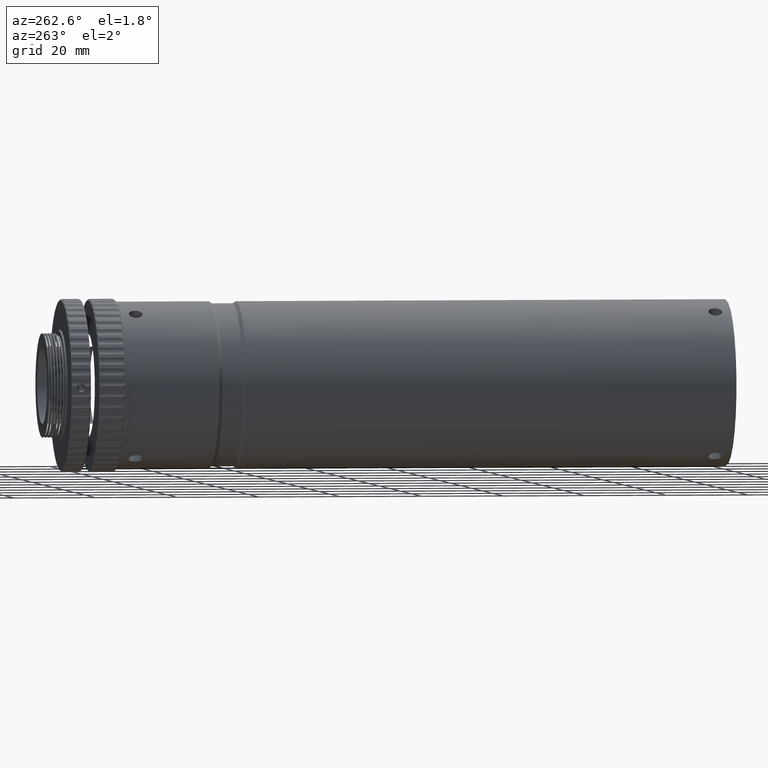
[diagram: clean part render]
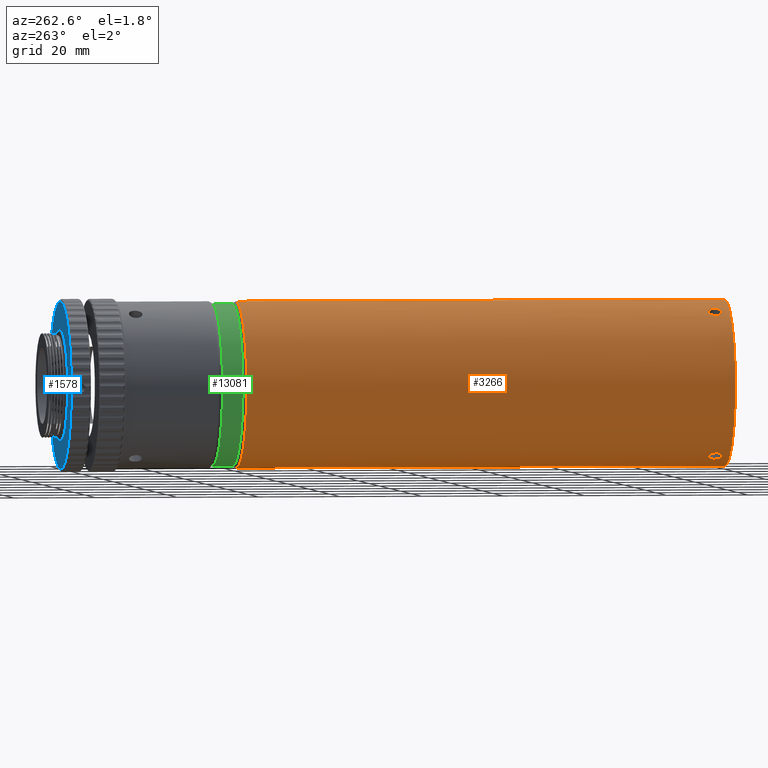
[diagram: same view with three faces highlighted in distinct colors, each labeled with its STEP entity id]
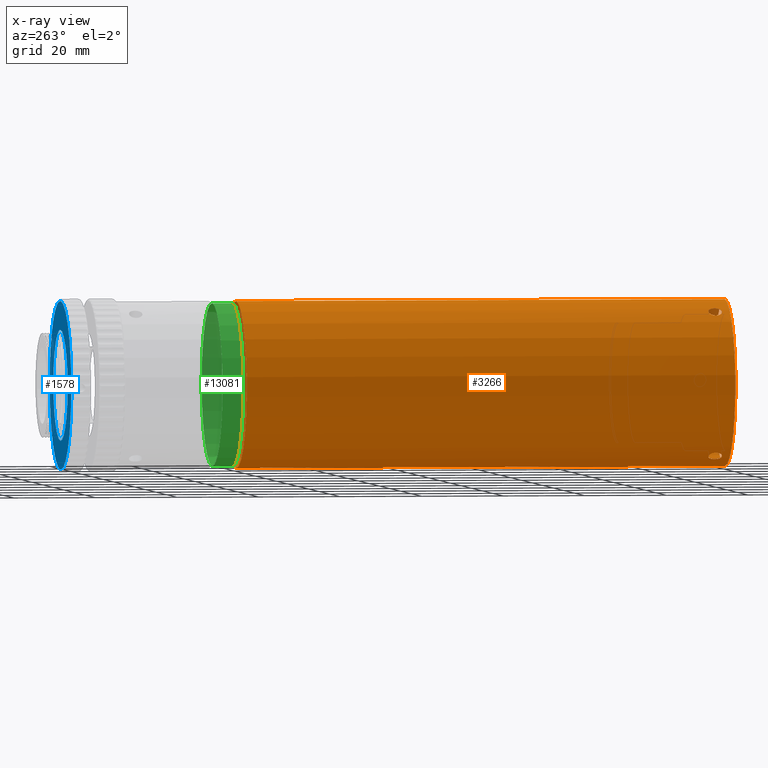
[diagram: x-ray of the same camera — body ghosted, the three highlighted faces saturated]
A machine part, auxiliary view with three faces highlighted in distinct colors.
The next image is the same camera in x-ray (body ghosted, the three faces saturated) — at least one of them is partly hidden behind the body in this view.
Their STEP definitions:

[orange] entity #3266 — the highlighted cylindrical surface (bore or boss wall) has radius 20.3 mm, axis along (-0, -1, -0).
#26 = CARTESIAN_POINT ( 'NONE',  ( -63.02940459154697800, -27.33804775748190600, 0.5335180865193155400 ) ) ;
#76 = CARTESIAN_POINT ( 'NONE',  ( -63.07369030847461000, -26.60465242210379300, -1.441164191080271700 ) ) ;
#78 = CARTESIAN_POINT ( 'NONE',  ( -93.28503863896725100, -24.13360773574394400, -17.68761650392867000 ) ) ;
#127 = CARTESIAN_POINT ( 'NONE',  ( -92.01997506380510600, -25.55526361403991600, -18.34248564448934000 ) ) ;
#147 = CARTESIAN_POINT ( 'NONE',  ( -93.28539647651750500, -24.12306458828154000, 17.68840874845557200 ) ) ;
#170 = CARTESIAN_POINT ( 'NONE',  ( -93.37689705623066100, -27.42284060940046000, -17.63558176197440000 ) ) ;
#185 = CARTESIAN_POINT ( 'NONE',  ( -94.79829572471213300, -25.24094102411731900, 16.74517867155957900 ) ) ;
#209 = CARTESIAN_POINT ( 'NONE',  ( -94.86799614728059300, -25.77294781569454300, -16.69714670067587300 ) ) ;
#232 = CARTESIAN_POINT ( 'NONE',  ( -93.84172553826734000, -27.36992428063801300, 17.36231336007065800 ) ) ;
#291 = CARTESIAN_POINT ( 'NONE',  ( -92.04995873384417800, -26.20774559697580100, 18.32841281745070100 ) ) ;
#297 = CYLINDRICAL_SURFACE ( 'NONE', #6867, 20.30000000000009300 ) ;
#622 = FACE_OUTER_BOUND ( 'NONE', #4177, .T. ) ;
#844 = B_SPLINE_CURVE_WITH_KNOTS ( 'NONE', 3,
 ( #6378, #11621, #7423, #1103, #8476, #2131, #9565, #3226, #10612, #4286, #11671, #5362, #12720, #6429, #78, #7457, #1147, #8529, #2177, #9604, #3278, #10656, #4332, #11716, #5411, #12761, #6463, #127, #7498, #1188, #8576, #2230, #9648, #3315, #10714, #4378, #11757, #5453, #12814, #6507, #170, #7548, #1235, #8615, #2276, #9698, #3364, #10754, #4425, #11800, #5495, #12863, #6564, #209 ),
 .UNSPECIFIED., .T., .F.,
 ( 4, 2, 2, 2, 2, 2, 2, 2, 2, 2, 2, 2, 2, 2, 2, 2, 2, 2, 2, 2, 2, 2, 2, 2, 2, 2, 4 ),
 ( 0.0000000000000000000, 0.0003225113595350485300, 0.0006450227190700970600, 0.0009675340786051455400, 0.001290045438140194100, 0.001935068157210304500, 0.002580090876280414700, 0.002902602235815454600, 0.003225113595350495000, 0.003547624954885534400, 0.003870136314420574400, 0.004192647673955614300, 0.004515159033490654200, 0.004837670393025695000, 0.005160181752560734000, 0.005805204471630824200, 0.006450227190700915300, 0.006772738550235957900, 0.007095249909771000400, 0.007417761269306042900, 0.007740272628841085400, 0.008062783988376129700, 0.008385295347911171300, 0.008707806707446214700, 0.009030318066981256300, 0.009675340786051348300, 0.01032036350512143700 ),
 .UNSPECIFIED. ) ;
#863 = VERTEX_POINT ( 'NONE', #11095 ) ;
#890 = DIRECTION ( 'NONE',  ( 0.0000000000000000000, 0.0000000000000000000, -1.000000000000000000 ) ) ;
#963 = FACE_OUTER_BOUND ( 'NONE', #4030, .T. ) ;
#1007 = CARTESIAN_POINT ( 'NONE',  ( -63.02263340040161000, -24.12288979189519700, 0.1067617393898315900 ) ) ;
#1056 = CARTESIAN_POINT ( 'NONE',  ( -63.08553108693578100, -25.34378745357397700, 1.596855867073586200 ) ) ;
#1102 = CARTESIAN_POINT ( 'NONE',  ( -63.02353157339918300, -27.41205347139481300, 0.2177129863972864000 ) ) ;
#1103 = CARTESIAN_POINT ( 'NONE',  ( -94.82452360732634100, -25.34573176781282600, -16.72713581755575500 ) ) ;
#1146 = CARTESIAN_POINT ( 'NONE',  ( -63.08980588779061800, -25.99105808369082000, -1.650000000000001200 ) ) ;
#1147 = CARTESIAN_POINT ( 'NONE',  ( -93.00974405441718300, -24.20686708451473000, -17.83984221179725800 ) ) ;
#1188 = CARTESIAN_POINT ( 'NONE',  ( -92.01004155119929400, -25.98774796598395300, -18.34718020762403500 ) ) ;
#1211 = CARTESIAN_POINT ( 'NONE',  ( -93.65936308024717500, -24.13360773574394700, 17.47150018699145200 ) ) ;
#1235 = CARTESIAN_POINT ( 'NONE',  ( -93.65826303733938100, -27.41243076603201300, -17.47214883433208500 ) ) ;
#1260 = CARTESIAN_POINT ( 'NONE',  ( -94.85902817970827500, -25.55526361403993000, 16.70335756377899400 ) ) ;
#1304 = CARTESIAN_POINT ( 'NONE',  ( -93.56837046320370600, -27.42284060940045600, 17.52503453891588200 ) ) ;
#1339 = CARTESIAN_POINT ( 'NONE',  ( -92.01011231479222400, -25.77294781569454300, 18.34714670067573300 ) ) ;
#1637 = AXIS2_PLACEMENT_3D ( 'NONE', #5420, #12772, #6472 ) ;
#1675 = B_SPLINE_CURVE_WITH_KNOTS ( 'NONE', 3,
 ( #7473, #4304, #8556, #2203, #9623, #3293, #10686, #4348, #11734, #5429, #12783, #6482, #147, #7522, #1211, #8594, #2251, #9670, #3339, #10731, #4405, #11775, #5472, #12837, #6532, #185, #7569, #1260, #8635, #2291, #9725, #3383, #10772, #4446, #11827, #5517, #12882, #6587, #232, #7608, #1304, #8679, #2336, #9764, #3440, #10818, #4493, #11876, #5576, #12921, #6626, #291, #7661, #1339 ),
 .UNSPECIFIED., .T., .F.,
 ( 4, 2, 2, 2, 2, 2, 2, 2, 2, 2, 2, 2, 2, 2, 2, 2, 2, 2, 2, 2, 2, 2, 2, 2, 2, 2, 4 ),
 ( 0.0000000000000000000, 0.0003225113595350507000, 0.0006450227190701014000, 0.0009675340786051520500, 0.001290045438140202800, 0.001935068157210307600, 0.002580090876280412100, 0.002902602235815449000, 0.003225113595350486300, 0.003547624954885522700, 0.003870136314420560000, 0.004192647673955596900, 0.004515159033490634200, 0.004837670393025670700, 0.005160181752560708000, 0.005805204471630791300, 0.006450227190700876300, 0.006772738550235919700, 0.007095249909770963100, 0.007417761269306007300, 0.007740272628841051600, 0.008062783988376095000, 0.008385295347911138300, 0.008707806707446181700, 0.009030318066981226800, 0.009675340786051318800, 0.01032036350512141100 ),
 .UNSPECIFIED. ) ;
#1957 = DIRECTION ( 'NONE',  ( -0.0000000000000000000, -1.000000000000000000, -0.0000000000000000000 ) ) ;
#2008 = CARTESIAN_POINT ( 'NONE',  ( -63.08892477153111900, -25.55666895931976900, -1.639294594933091500 ) ) ;
#2049 = CARTESIAN_POINT ( 'NONE',  ( -63.02686964982925800, -24.17571331189969200, 0.4277664082956068000 ) ) ;
#2098 = CARTESIAN_POINT ( 'NONE',  ( -63.08980269254384200, -25.66464982831788400, 1.649960818850447100 ) ) ;
#2130 = CARTESIAN_POINT ( 'NONE',  ( -63.02262953080190000, -27.42305344733821200, -0.1073234534783601100 ) ) ;
#2131 = CARTESIAN_POINT ( 'NONE',  ( -94.72967033268987800, -25.04112624779828200, -16.79200229660441600 ) ) ;
#2141 = EDGE_CURVE ( 'NONE', #10464, #10464, #8572, .T. ) ;
#2150 = DIRECTION ( 'NONE',  ( 0.0000000000000000000, 0.0000000000000000000, -1.000000000000000000 ) ) ;
#2153 = VERTEX_POINT ( 'NONE', #10268 ) ;
#2177 = CARTESIAN_POINT ( 'NONE',  ( -92.74807555628169100, -24.34114323833769300, -17.97940862652313900 ) ) ;
#2203 = CARTESIAN_POINT ( 'NONE',  ( -92.05781992182436100, -25.34573176781283300, 18.32449293514826700 ) ) ;
#2230 = CARTESIAN_POINT ( 'NONE',  ( -92.19772099613256000, -26.60214500290915000, -18.25731879083505800 ) ) ;
#2251 = CARTESIAN_POINT ( 'NONE',  ( -93.92884170264551400, -24.20686708451472700, 17.30920093718111000 ) ) ;
#2276 = CARTESIAN_POINT ( 'NONE',  ( -93.92872655587747500, -27.33908175081395000, -17.30927206842407200 ) ) ;
#2291 = CARTESIAN_POINT ( 'NONE',  ( -94.86806054694540100, -25.98774796598394200, 16.69710217108091000 ) ) ;
#2336 = CARTESIAN_POINT ( 'NONE',  ( -93.28615040549628600, -27.41243076603202400, 17.68698816249561600 ) ) ;
#2855 = B_SPLINE_CURVE_WITH_KNOTS ( 'NONE', 3,
 ( #8337, #7277, #2008, #9412, #3087, #10477, #4150, #11533, #5228, #12584, #6292, #13655, #7328, #1007, #8393, #2049, #9460, #3131, #10530, #4189, #11573, #5277, #12637, #6329, #13702, #7378, #1056, #8429, #2098, #9513, #3178, #10567, #4246, #11619, #5316, #12682, #6376, #26, #7422, #1102, #8474, #2130, #9564, #3224, #10610, #4285, #11670, #5360, #12719, #6428, #76, #7456, #1146, #8528 ),
 .UNSPECIFIED., .T., .F.,
 ( 4, 2, 2, 2, 2, 2, 2, 2, 2, 2, 2, 2, 2, 2, 2, 2, 2, 2, 2, 2, 2, 2, 2, 2, 2, 2, 4 ),
 ( 0.0000000000000000000, 0.0003225113595350486900, 0.0006450227190700973900, 0.0009675340786051459800, 0.001290045438140194800, 0.001935068157210285700, 0.002580090876280377000, 0.002902602235815422500, 0.003225113595350468500, 0.003547624954885514500, 0.003870136314420560000, 0.004192647673955606500, 0.004515159033490653300, 0.004837670393025699300, 0.005160181752560746200, 0.005805204471630837300, 0.006450227190700931000, 0.006772738550235971700, 0.007095249909771013400, 0.007417761269306055900, 0.007740272628841096700, 0.008062783988376138300, 0.008385295347911178200, 0.008707806707446219900, 0.009030318066981259800, 0.009675340786051341400, 0.01032036350512142300 ),
 .UNSPECIFIED. ) ;
#3075 = CARTESIAN_POINT ( 'NONE',  ( -83.32263811662116400, -29.41294781569395400, -20.30000000000000100 ) ) ;
#3087 = CARTESIAN_POINT ( 'NONE',  ( -63.08305854043575100, -25.24092216112050100, -1.565612878988773300 ) ) ;
#3131 = CARTESIAN_POINT ( 'NONE',  ( -63.03553830561107700, -24.28950042233086700, 0.7304607107992388000 ) ) ;
#3178 = CARTESIAN_POINT ( 'NONE',  ( -63.08616925707590200, -26.20490172239757600, 1.606895654680239300 ) ) ;
#3224 = CARTESIAN_POINT ( 'NONE',  ( -63.02682983739637000, -27.37068577844037500, -0.4257859600478377500 ) ) ;
#3226 = CARTESIAN_POINT ( 'NONE',  ( -94.58798688815463200, -24.76704769127029200, -16.88743668097596300 ) ) ;
#3266 = ADVANCED_FACE ( 'NONE', ( #9048, #11862, #6269, #963, #622 ), #297, .T. ) ;
#3278 = CARTESIAN_POINT ( 'NONE',  ( -92.51487251720084300, -24.52870316310619700, -18.09969014795123600 ) ) ;
#3293 = CARTESIAN_POINT ( 'NONE',  ( -92.16142257785276100, -25.04112624779827500, 18.27478082920524100 ) ) ;
#3315 = CARTESIAN_POINT ( 'NONE',  ( -92.51243219753476400, -27.01467880698773900, -18.10092477548052500 ) ) ;
#3339 = CARTESIAN_POINT ( 'NONE',  ( -94.18054401238090600, -24.34114323833769000, 17.15237257778864300 ) ) ;
#3364 = CARTESIAN_POINT ( 'NONE',  ( -94.17910219575543400, -27.20575713576215500, -17.15328672822055400 ) ) ;
#3383 = CARTESIAN_POINT ( 'NONE',  ( -94.69639855471953600, -26.60214500290914000, 16.81470662976680300 ) ) ;
#3440 = CARTESIAN_POINT ( 'NONE',  ( -93.00986322926459600, -27.33908175081396400, 17.83977805739252900 ) ) ;
#4028 = EDGE_CURVE ( 'NONE', #6340, #6340, #844, .T. ) ;
#4030 = EDGE_LOOP ( 'NONE', ( #12214 ) ) ;
#4150 = CARTESIAN_POINT ( 'NONE',  ( -63.07312692463489200, -24.94637269738179000, -1.432095347344639600 ) ) ;
#4177 = EDGE_LOOP ( 'NONE', ( #12446 ) ) ;
#4189 = CARTESIAN_POINT ( 'NONE',  ( -63.04737311125797600, -24.46053838152318600, 1.005800403034427200 ) ) ;
#4216 = EDGE_LOOP ( 'NONE', ( #8342 ) ) ;
#4246 = CARTESIAN_POINT ( 'NONE',  ( -63.06501642179476600, -26.78628126441348200, 1.319823919349158100 ) ) ;
#4285 = CARTESIAN_POINT ( 'NONE',  ( -63.03554011517724100, -27.25637152697866800, -0.7305246059265820800 ) ) ;
#4286 = CARTESIAN_POINT ( 'NONE',  ( -94.33877875810748000, -24.45397071521937700, -17.05162387963104100 ) ) ;
#4304 = CARTESIAN_POINT ( 'NONE',  ( -92.01011231479221000, -25.66389268169640700, 18.34714670067573600 ) ) ;
#4332 = CARTESIAN_POINT ( 'NONE',  ( -92.31564256971682900, -24.76602630171584400, -18.19943567190565000 ) ) ;
#4348 = CARTESIAN_POINT ( 'NONE',  ( -92.31491290138070800, -24.76704769127028200, 18.19979655912782900 ) ) ;
#4378 = CARTESIAN_POINT ( 'NONE',  ( -92.74739568012418500, -27.20433618074929100, -17.97976631697644800 ) ) ;
#4405 = CARTESIAN_POINT ( 'NONE',  ( -94.40131238508396900, -24.52870316310620100, 17.01055358241891800 ) ) ;
#4425 = CARTESIAN_POINT ( 'NONE',  ( -94.40173318063406800, -27.01663907020688500, -17.01027549981332900 ) ) ;
#4446 = CARTESIAN_POINT ( 'NONE',  ( -94.40360176372158200, -27.01467880698774900, 17.00905751735938400 ) ) ;
#4493 = CARTESIAN_POINT ( 'NONE',  ( -92.74958814209139700, -27.20575713576214500, 17.97861705191385100 ) ) ;
#4834 = AXIS2_PLACEMENT_3D ( 'NONE', #13542, #1957, #890 ) ;
#5228 = CARTESIAN_POINT ( 'NONE',  ( -63.06056730713294200, -24.68217709342710000, -1.242696424168446400 ) ) ;
#5277 = CARTESIAN_POINT ( 'NONE',  ( -63.06059706046438200, -24.68266608686806100, 1.243241314331655400 ) ) ;
#5316 = CARTESIAN_POINT ( 'NONE',  ( -63.04743575948118200, -27.08440131083641600, 1.007085557891311200 ) ) ;
#5360 = CARTESIAN_POINT ( 'NONE',  ( -63.04731623389557900, -27.08623843735142600, -1.004679269194186800 ) ) ;
#5362 = CARTESIAN_POINT ( 'NONE',  ( -93.84613940853809300, -24.16644364246143100, -17.36045418174845200 ) ) ;
#5411 = CARTESIAN_POINT ( 'NONE',  ( -92.16144006722757400, -25.04108191278858800, -18.27477240237338300 ) ) ;
#5420 = CARTESIAN_POINT ( 'NONE',  ( -83.32263811662116400, 90.41623458750542900, 0.0000000000000000000 ) ) ;
#5429 = CARTESIAN_POINT ( 'NONE',  ( -92.58170725141576400, -24.45397071521937700, 18.06606958700494300 ) ) ;
#5453 = CARTESIAN_POINT ( 'NONE',  ( -93.00721466285388300, -27.33804775748190600, -17.84121480090404100 ) ) ;
#5472 = CARTESIAN_POINT ( 'NONE',  ( -94.58730951648424000, -24.76602630171583300, 16.88788814868035000 ) ) ;
#5495 = CARTESIAN_POINT ( 'NONE',  ( -94.69519682119427300, -26.60465242210380100, -16.81552110622013200 ) ) ;
#5517 = CARTESIAN_POINT ( 'NONE',  ( -94.18119371947891200, -27.20433618074930800, 17.15196263299141700 ) ) ;
#5576 = CARTESIAN_POINT ( 'NONE',  ( -92.51442129282503400, -27.01663907020687800, 18.09991552628465800 ) ) ;
#6269 = FACE_BOUND ( 'NONE', #4216, .T. ) ;
#6292 = CARTESIAN_POINT ( 'NONE',  ( -63.03865854158238600, -24.33105213173987000, -0.8304344868651648600 ) ) ;
#6329 = CARTESIAN_POINT ( 'NONE',  ( -63.07305485766050200, -24.94464706515827100, 1.431071524296487300 ) ) ;
#6340 = VERTEX_POINT ( 'NONE', #7368 ) ;
#6376 = CARTESIAN_POINT ( 'NONE',  ( -63.03563426486110900, -27.25508687999131000, 0.7331051565168335000 ) ) ;
#6378 = CARTESIAN_POINT ( 'NONE',  ( -94.86799614728059300, -25.77294781569454300, -16.69714670067587300 ) ) ;
#6428 = CARTESIAN_POINT ( 'NONE',  ( -63.06490342300226400, -26.78851078492914400, -1.318129413554044200 ) ) ;
#6429 = CARTESIAN_POINT ( 'NONE',  ( -93.38018209626697800, -24.12288979189520400, -17.63370065088506100 ) ) ;
#6463 = CARTESIAN_POINT ( 'NONE',  ( -92.05827388439571700, -25.34378745357398800, -18.32427672034903700 ) ) ;
#6472 = DIRECTION ( 'NONE',  ( 0.0000000000000000000, 0.0000000000000000000, -1.000000000000000000 ) ) ;
#6482 = CARTESIAN_POINT ( 'NONE',  ( -93.09548181329260800, -24.16644364246143400, 17.79384654643265400 ) ) ;
#6497 = EDGE_LOOP ( 'NONE', ( #7664 ) ) ;
#6507 = CARTESIAN_POINT ( 'NONE',  ( -93.28364641127814100, -27.41205347139481300, -17.68839843375587900 ) ) ;
#6532 = CARTESIAN_POINT ( 'NONE',  ( -94.72965429015202700, -25.04108191278859500, 16.79201322943133300 ) ) ;
#6564 = CARTESIAN_POINT ( 'NONE',  ( -94.86799614728062100, -25.99105808369081300, -16.69714670067587300 ) ) ;
#6587 = CARTESIAN_POINT ( 'NONE',  ( -93.93129509546257300, -27.33804775748191000, 17.30769671438459100 ) ) ;
#6626 = CARTESIAN_POINT ( 'NONE',  ( -92.19902722019459400, -26.60465242210380400, 18.25668529730025800 ) ) ;
#6654 = VERTEX_POINT ( 'NONE', #10172 ) ;
#6867 = AXIS2_PLACEMENT_3D ( 'NONE', #8124, #11416, #2150 ) ;
#7041 = EDGE_LOOP ( 'NONE', ( #10179 ) ) ;
#7277 = CARTESIAN_POINT ( 'NONE',  ( -63.08980588779063200, -25.66389268169640700, -1.649999999999999000 ) ) ;
#7328 = CARTESIAN_POINT ( 'NONE',  ( -63.02264760798757900, -24.12306458828153300, -0.2162025427918980200 ) ) ;
#7368 = CARTESIAN_POINT ( 'NONE',  ( -94.86799614728060700, -25.77294781569454000, -16.69714670067587600 ) ) ;
#7378 = CARTESIAN_POINT ( 'NONE',  ( -63.08305919209572500, -25.24094102411734000, 1.565621677959095900 ) ) ;
#7422 = CARTESIAN_POINT ( 'NONE',  ( -63.02688996751093200, -27.36992428063800600, 0.4286402517395097000 ) ) ;
#7423 = CARTESIAN_POINT ( 'NONE',  ( -94.85916555266466300, -25.55666895931977900, -16.70326247227375300 ) ) ;
#7456 = CARTESIAN_POINT ( 'NONE',  ( -63.08610669704904700, -26.20774559697578400, -1.606125047238640100 ) ) ;
#7457 = CARTESIAN_POINT ( 'NONE',  ( -93.10006577354735700, -24.17571331189970300, -17.79053428571684500 ) ) ;
#7473 = CARTESIAN_POINT ( 'NONE',  ( -92.01011231479222400, -25.77294781569454300, 18.34714670067573300 ) ) ;
#7498 = CARTESIAN_POINT ( 'NONE',  ( -92.01014784428616600, -25.66464982831788400, -18.34712987726598100 ) ) ;
#7522 = CARTESIAN_POINT ( 'NONE',  ( -93.56509885319478300, -24.12288979189519000, 17.52693891149506600 ) ) ;
#7548 = CARTESIAN_POINT ( 'NONE',  ( -93.56558724666476200, -27.42305344733820100, -17.52666140562261500 ) ) ;
#7569 = CARTESIAN_POINT ( 'NONE',  ( -94.82410937853190100, -25.34378745357398400, 16.72742085327533000 ) ) ;
#7603 = EDGE_CURVE ( 'NONE', #863, #863, #13386, .T. ) ;
#7608 = CARTESIAN_POINT ( 'NONE',  ( -93.66073636518602500, -27.41205347139480300, 17.47068544735844100 ) ) ;
#7661 = CARTESIAN_POINT ( 'NONE',  ( -92.01011231479225200, -25.99105808369081700, 18.34714670067572900 ) ) ;
#7664 = ORIENTED_EDGE ( 'NONE', *, *, #12860, .F. ) ;
#8124 = CARTESIAN_POINT ( 'NONE',  ( -83.32263811662116400, -36.46557285159197900, 0.0000000000000000000 ) ) ;
#8337 = CARTESIAN_POINT ( 'NONE',  ( -63.08980588779061800, -25.77294781569454300, -1.649999999999999900 ) ) ;
#8342 = ORIENTED_EDGE ( 'NONE', *, *, #11067, .F. ) ;
#8393 = CARTESIAN_POINT ( 'NONE',  ( -63.02351263064899500, -24.13360773574394000, 0.2161163169370733400 ) ) ;
#8429 = CARTESIAN_POINT ( 'NONE',  ( -63.08891110635005400, -25.55526361403991900, 1.639128080710223300 ) ) ;
#8474 = CARTESIAN_POINT ( 'NONE',  ( -63.02264683042906100, -27.42284060940046000, 0.1105472230583766100 ) ) ;
#8476 = CARTESIAN_POINT ( 'NONE',  ( -94.79828843041012500, -25.24092216112052600, -16.74518363539896600 ) ) ;
#8528 = CARTESIAN_POINT ( 'NONE',  ( -63.08980588779061800, -25.77294781569454300, -1.649999999999999900 ) ) ;
#8529 = CARTESIAN_POINT ( 'NONE',  ( -92.83359049010742600, -24.28950042233086400, -17.93437416084490700 ) ) ;
#8556 = CARTESIAN_POINT ( 'NONE',  ( -92.01982402566768800, -25.55666895931977600, 18.34255706720669500 ) ) ;
#8572 = CIRCLE ( 'NONE', #4834, 20.30000000000000100 ) ;
#8576 = CARTESIAN_POINT ( 'NONE',  ( -92.04926008820969200, -26.20490172239757200, -18.32874394259910400 ) ) ;
#8594 = CARTESIAN_POINT ( 'NONE',  ( -93.84097892648685500, -24.17571331189970600, 17.36276787742109600 ) ) ;
#8615 = CARTESIAN_POINT ( 'NONE',  ( -93.83928371420954300, -27.37068577844037200, -17.36379258012339500 ) ) ;
#8635 = CARTESIAN_POINT ( 'NONE',  ( -94.86796381303335600, -25.66464982831787400, 16.69716905841539400 ) ) ;
#8679 = CARTESIAN_POINT ( 'NONE',  ( -93.37969757239673600, -27.42305344733819100, 17.63398485910083800 ) ) ;
#9048 = FACE_BOUND ( 'NONE', #7041, .T. ) ;
#9412 = CARTESIAN_POINT ( 'NONE',  ( -63.08557082071269700, -25.34573176781282900, -1.597357117592669500 ) ) ;
#9460 = CARTESIAN_POINT ( 'NONE',  ( -63.02932859280072400, -24.20686708451472700, 0.5306412746160189500 ) ) ;
#9513 = CARTESIAN_POINT ( 'NONE',  ( -63.08981225171859800, -25.98774796598394600, 1.650078036542980600 ) ) ;
#9564 = CARTESIAN_POINT ( 'NONE',  ( -63.02350090702778100, -27.41243076603202400, -0.2148393281636741300 ) ) ;
#9565 = CARTESIAN_POINT ( 'NONE',  ( -94.68762466405608800, -24.94637269738179000, -16.82054343280520900 ) ) ;
#9604 = CARTESIAN_POINT ( 'NONE',  ( -92.58922191913818300, -24.46053838152319700, -18.06179476462346800 ) ) ;
#9623 = CARTESIAN_POINT ( 'NONE',  ( -92.08656737901760900, -25.24092216112049800, 18.31079651438758300 ) ) ;
#9648 = CARTESIAN_POINT ( 'NONE',  ( -92.30844792135546600, -26.78628126441346100, -18.20352696764913600 ) ) ;
#9670 = CARTESIAN_POINT ( 'NONE',  ( -94.09878555414481100, -24.28950042233086000, 17.20391345004553000 ) ) ;
#9698 = CARTESIAN_POINT ( 'NONE',  ( -94.09883998416498200, -27.25637152697867900, -17.20387993535173600 ) ) ;
#9725 = CARTESIAN_POINT ( 'NONE',  ( -94.83248500457779100, -26.20490172239757200, 16.72184828791873200 ) ) ;
#9764 = CARTESIAN_POINT ( 'NONE',  ( -93.10180079825748600, -27.37068577844038600, 17.78957854017107800 ) ) ;
#10172 = CARTESIAN_POINT ( 'NONE',  ( -63.08980588779061800, -25.77294781569454000, -1.649999999999999000 ) ) ;
#10179 = ORIENTED_EDGE ( 'NONE', *, *, #4028, .F. ) ;
#10268 = CARTESIAN_POINT ( 'NONE',  ( -92.01011231479219500, -25.77294781569454000, 18.34714670067572900 ) ) ;
#10464 = VERTEX_POINT ( 'NONE', #3075 ) ;
#10477 = CARTESIAN_POINT ( 'NONE',  ( -63.07682143932076700, -25.04112624779826700, -1.482778532600973900 ) ) ;
#10530 = CARTESIAN_POINT ( 'NONE',  ( -63.03929478120073800, -24.34114323833769300, 0.8270360487343684200 ) ) ;
#10567 = CARTESIAN_POINT ( 'NONE',  ( -63.07379479901130300, -26.60214500290914300, 1.442612161068121500 ) ) ;
#10610 = CARTESIAN_POINT ( 'NONE',  ( -63.02932456472133500, -27.33908175081396100, -0.5305059889686020200 ) ) ;
#10612 = CARTESIAN_POINT ( 'NONE',  ( -94.52988019388710900, -24.68217709342709300, -16.92611984221181100 ) ) ;
#10656 = CARTESIAN_POINT ( 'NONE',  ( -92.37698008345383000, -24.68266608686805700, -18.16906294432096300 ) ) ;
#10686 = CARTESIAN_POINT ( 'NONE',  ( -92.20716276117242700, -24.94637269738177900, 18.25263878014969500 ) ) ;
#10714 = CARTESIAN_POINT ( 'NONE',  ( -92.58807761827272000, -27.08440131083641900, -18.06238308709910400 ) ) ;
#10731 = CARTESIAN_POINT ( 'NONE',  ( -94.33131931946726900, -24.46053838152319000, 17.05599436158890800 ) ) ;
#10754 = CARTESIAN_POINT ( 'NONE',  ( -94.33037682776155500, -27.08623843735143000, -17.05660418574992200 ) ) ;
#10772 = CARTESIAN_POINT ( 'NONE',  ( -94.59445000671321700, -26.78628126441348600, 16.88370304829982500 ) ) ;
#10818 = CARTESIAN_POINT ( 'NONE',  ( -92.83353425052114000, -27.25637152697867900, 17.93440454127818000 ) ) ;
#11067 = EDGE_CURVE ( 'NONE', #6654, #6654, #2855, .T. ) ;
#11095 = CARTESIAN_POINT ( 'NONE',  ( -83.32263811662116400, 90.41623458750542900, -20.30000000000018200 ) ) ;
#11416 = DIRECTION ( 'NONE',  ( -0.0000000000000000000, -1.000000000000000000, -0.0000000000000000000 ) ) ;
#11533 = CARTESIAN_POINT ( 'NONE',  ( -63.06501456032810900, -24.76704769127028900, -1.312359878152014000 ) ) ;
#11573 = CARTESIAN_POINT ( 'NONE',  ( -63.05172944757861600, -24.52870316310619700, 1.089136565532192100 ) ) ;
#11619 = CARTESIAN_POINT ( 'NONE',  ( -63.05188038860708100, -27.01467880698774900, 1.091867258121001600 ) ) ;
#11621 = CARTESIAN_POINT ( 'NONE',  ( -94.86799614728059300, -25.66389268169641000, -16.69714670067587600 ) ) ;
#11670 = CARTESIAN_POINT ( 'NONE',  ( -63.03922401201658900, -27.20575713576217000, -0.8253303236934251800 ) ) ;
#11671 = CARTESIAN_POINT ( 'NONE',  ( -94.18380526594432900, -24.33105213173987400, -17.15122435839573400 ) ) ;
#11716 = CARTESIAN_POINT ( 'NONE',  ( -92.20808545142801900, -24.94464706515827900, -18.25218928045633100 ) ) ;
#11734 = CARTESIAN_POINT ( 'NONE',  ( -92.37746684884339700, -24.68217709342708200, 18.16881626638009500 ) ) ;
#11757 = CARTESIAN_POINT ( 'NONE',  ( -92.83125235331209500, -27.25508687999129300, -17.93561328055546900 ) ) ;
#11775 = CARTESIAN_POINT ( 'NONE',  ( -94.53033720594518700, -24.68266608686804600, 16.92582162998915500 ) ) ;
#11800 = CARTESIAN_POINT ( 'NONE',  ( -94.59303902104373700, -26.78851078492915100, -16.88464816102241500 ) ) ;
#11827 = CARTESIAN_POINT ( 'NONE',  ( -94.33240097210956800, -27.08440131083640900, 17.05529752920766400 ) ) ;
#11862 = FACE_BOUND ( 'NONE', #6497, .T. ) ;
#11876 = CARTESIAN_POINT ( 'NONE',  ( -92.59022128820626600, -27.08623843735143000, 18.06128345494395800 ) ) ;
#12214 = ORIENTED_EDGE ( 'NONE', *, *, #7603, .T. ) ;
#12446 = ORIENTED_EDGE ( 'NONE', *, *, #2141, .F. ) ;
#12584 = CARTESIAN_POINT ( 'NONE',  ( -63.04742834034016100, -24.45397071521937700, -1.014445707374052000 ) ) ;
#12637 = CARTESIAN_POINT ( 'NONE',  ( -63.06496226366234500, -24.76602630171584700, 1.311547523225159400 ) ) ;
#12682 = CARTESIAN_POINT ( 'NONE',  ( -63.03932495026023700, -27.20433618074929800, 0.8278036839848910100 ) ) ;
#12719 = CARTESIAN_POINT ( 'NONE',  ( -63.05175987640435400, -27.01663907020687500, -1.089640026471478100 ) ) ;
#12720 = CARTESIAN_POINT ( 'NONE',  ( -93.65987026535832200, -24.12306458828152200, -17.47220620566379900 ) ) ;
#12761 = CARTESIAN_POINT ( 'NONE',  ( -92.08655943305554100, -25.24094102411734400, -18.31080034951882100 ) ) ;
#12772 = DIRECTION ( 'NONE',  ( -0.0000000000000000000, -1.000000000000000000, -0.0000000000000000000 ) ) ;
#12783 = CARTESIAN_POINT ( 'NONE',  ( -92.74545054233674100, -24.33105213173987700, 17.98165884526075700 ) ) ;
#12814 = CARTESIAN_POINT ( 'NONE',  ( -93.09929884408514100, -27.36992428063802100, -17.79095361181031300 ) ) ;
#12837 = CARTESIAN_POINT ( 'NONE',  ( -94.68677404077486400, -24.94464706515828200, 16.82111775615969800 ) ) ;
#12860 = EDGE_CURVE ( 'NONE', #2153, #2153, #1675, .T. ) ;
#12863 = CARTESIAN_POINT ( 'NONE',  ( -94.83184891897018100, -26.20774559697578700, -16.72228777021219400 ) ) ;
#12882 = CARTESIAN_POINT ( 'NONE',  ( -94.10102773169026600, -27.25508687999130700, 17.20250812403849500 ) ) ;
#12921 = CARTESIAN_POINT ( 'NONE',  ( -92.30997190581740600, -26.78851078492914800, 18.20277757457630900 ) ) ;
#13386 = CIRCLE ( 'NONE', #1637, 20.30000000000018200 ) ;
#13542 = CARTESIAN_POINT ( 'NONE',  ( -83.32263811662116400, -29.41294781569395400, 0.0000000000000000000 ) ) ;
#13655 = CARTESIAN_POINT ( 'NONE',  ( -63.02629312803277600, -24.16644364246142000, -0.4333923646843521600 ) ) ;
#13702 = CARTESIAN_POINT ( 'NONE',  ( -63.07681999248382000, -25.04108191278860600, 1.482759172941915200 ) ) ;

[blue] entity #1578 — the highlighted planar face has unit normal (0, -1, 0).
#1578 = ADVANCED_FACE ( 'NONE', ( #7618, #7302 ), #5947, .F. ) ;
#2650 = CARTESIAN_POINT ( 'NONE',  ( -83.32263811662117800, 133.4670521842360000, 0.0000000000000000000 ) ) ;
#2831 = CARTESIAN_POINT ( 'NONE',  ( -83.32263811662117800, 133.4670521842360000, 0.0000000000000000000 ) ) ;
#3739 = DIRECTION ( 'NONE',  ( 0.0000000000000000000, 0.0000000000000000000, 1.000000000000000000 ) ) ;
#3921 = DIRECTION ( 'NONE',  ( 0.0000000000000000000, 0.0000000000000000000, 1.000000000000000000 ) ) ;
#4199 = EDGE_LOOP ( 'NONE', ( #7317 ) ) ;
#5881 = CARTESIAN_POINT ( 'NONE',  ( -83.32263811662117800, 133.4670521842360000, 13.50000000019379700 ) ) ;
#5947 = PLANE ( 'NONE',  #11710 ) ;
#6237 = EDGE_LOOP ( 'NONE', ( #9931 ) ) ;
#7302 = FACE_OUTER_BOUND ( 'NONE', #6237, .T. ) ;
#7317 = ORIENTED_EDGE ( 'NONE', *, *, #9261, .F. ) ;
#7618 = FACE_BOUND ( 'NONE', #4199, .T. ) ;
#7971 = CARTESIAN_POINT ( 'NONE',  ( -83.32263811662117800, 133.4670521842360000, 20.49999999999734600 ) ) ;
#9047 = AXIS2_PLACEMENT_3D ( 'NONE', #2650, #10080, #3739 ) ;
#9261 = EDGE_CURVE ( 'NONE', #10784, #10784, #11394, .T. ) ;
#9454 = EDGE_CURVE ( 'NONE', #13247, #13247, #10408, .T. ) ;
#9931 = ORIENTED_EDGE ( 'NONE', *, *, #9454, .T. ) ;
#10080 = DIRECTION ( 'NONE',  ( -0.0000000000000000000, 1.000000000000000000, -0.0000000000000000000 ) ) ;
#10258 = DIRECTION ( 'NONE',  ( -0.0000000000000000000, 1.000000000000000000, -0.0000000000000000000 ) ) ;
#10355 = DIRECTION ( 'NONE',  ( 0.0000000000000000000, -0.0000000000000000000, -1.000000000000000000 ) ) ;
#10408 = CIRCLE ( 'NONE', #13284, 20.49999999999734600 ) ;
#10784 = VERTEX_POINT ( 'NONE', #5881 ) ;
#11394 = CIRCLE ( 'NONE', #9047, 13.50000000019379700 ) ;
#11697 = CARTESIAN_POINT ( 'NONE',  ( -83.32263811662117800, 133.4670521842360000, 0.0000000000000000000 ) ) ;
#11710 = AXIS2_PLACEMENT_3D ( 'NONE', #11697, #13583, #10355 ) ;
#13247 = VERTEX_POINT ( 'NONE', #7971 ) ;
#13284 = AXIS2_PLACEMENT_3D ( 'NONE', #2831, #10258, #3921 ) ;
#13583 = DIRECTION ( 'NONE',  ( 0.0000000000000000000, -1.000000000000000000, 0.0000000000000000000 ) ) ;

[green] entity #13081 — the highlighted cylindrical surface (bore or boss wall) has radius 19.8 mm, axis along (-0, -1, -0).
#79 = ORIENTED_EDGE ( 'NONE', *, *, #9678, .T. ) ;
#685 = DIRECTION ( 'NONE',  ( -0.0000000000000000000, -1.000000000000000000, -0.0000000000000000000 ) ) ;
#892 = FACE_OUTER_BOUND ( 'NONE', #10514, .T. ) ;
#1978 = AXIS2_PLACEMENT_3D ( 'NONE', #2984, #10384, #4055 ) ;
#2984 = CARTESIAN_POINT ( 'NONE',  ( -83.32263811662116400, 91.28225999130111700, 0.0000000000000000000 ) ) ;
#3376 = CYLINDRICAL_SURFACE ( 'NONE', #10675, 19.79999999999350300 ) ;
#3712 = FACE_OUTER_BOUND ( 'NONE', #13142, .T. ) ;
#3794 = CARTESIAN_POINT ( 'NONE',  ( -83.32263811662116400, 96.28389518490124000, -19.79999999999350300 ) ) ;
#4055 = DIRECTION ( 'NONE',  ( 0.0000000000000000000, 0.0000000000000000000, -1.000000000000000000 ) ) ;
#4204 = ORIENTED_EDGE ( 'NONE', *, *, #12338, .F. ) ;
#4284 = CARTESIAN_POINT ( 'NONE',  ( -83.32263811662116400, 96.28389518490124000, 0.0000000000000000000 ) ) ;
#5357 = DIRECTION ( 'NONE',  ( 0.0000000000000000000, 0.0000000000000000000, -1.000000000000000000 ) ) ;
#5752 = CIRCLE ( 'NONE', #1978, 19.79999999999350300 ) ;
#6290 = CIRCLE ( 'NONE', #10919, 19.79999999999350300 ) ;
#7021 = DIRECTION ( 'NONE',  ( 0.0000000000000000000, 0.0000000000000000000, -1.000000000000000000 ) ) ;
#8115 = VERTEX_POINT ( 'NONE', #13373 ) ;
#9091 = CARTESIAN_POINT ( 'NONE',  ( -83.32263811662116400, -36.46557285159197900, 0.0000000000000000000 ) ) ;
#9678 = EDGE_CURVE ( 'NONE', #12915, #12915, #6290, .T. ) ;
#10384 = DIRECTION ( 'NONE',  ( -0.0000000000000000000, -1.000000000000000000, -0.0000000000000000000 ) ) ;
#10514 = EDGE_LOOP ( 'NONE', ( #79 ) ) ;
#10675 = AXIS2_PLACEMENT_3D ( 'NONE', #9091, #685, #7021 ) ;
#10919 = AXIS2_PLACEMENT_3D ( 'NONE', #4284, #11667, #5357 ) ;
#11667 = DIRECTION ( 'NONE',  ( -0.0000000000000000000, -1.000000000000000000, -0.0000000000000000000 ) ) ;
#12338 = EDGE_CURVE ( 'NONE', #8115, #8115, #5752, .T. ) ;
#12915 = VERTEX_POINT ( 'NONE', #3794 ) ;
#13081 = ADVANCED_FACE ( 'NONE', ( #892, #3712 ), #3376, .T. ) ;
#13142 = EDGE_LOOP ( 'NONE', ( #4204 ) ) ;
#13373 = CARTESIAN_POINT ( 'NONE',  ( -83.32263811662116400, 91.28225999130111700, -19.79999999999350300 ) ) ;